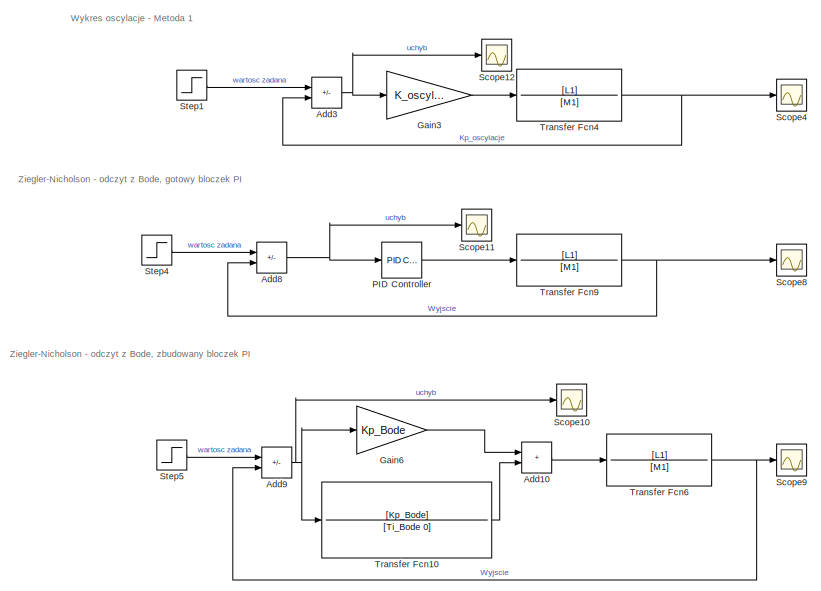
[diagram: root canvas - part 1/2, top center region]
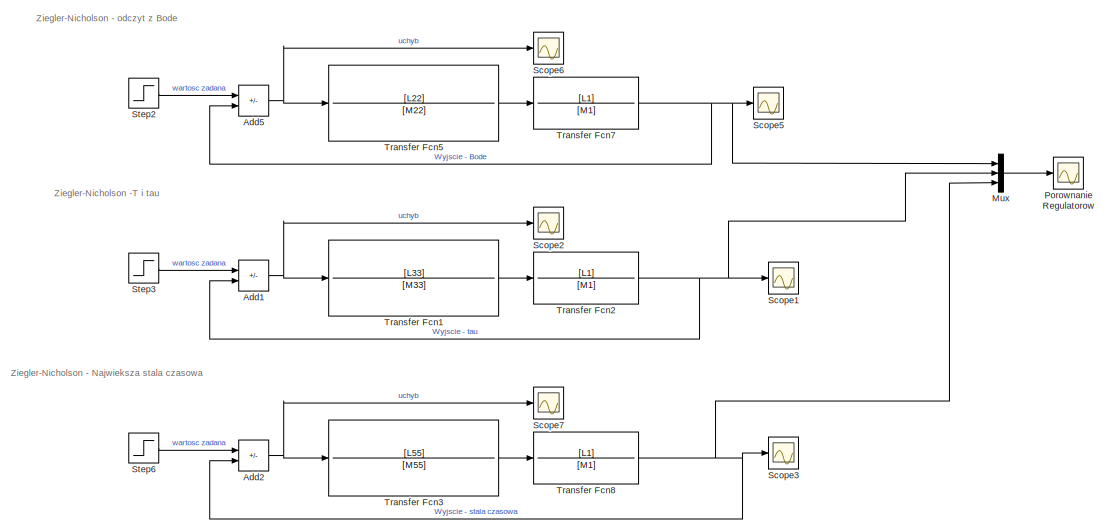
[diagram: root canvas - part 2/2, full width, bottom band]
MODEL slx_920cf55da01c
KIND model
CONFIG AbsTol = auto
CONFIG EnableMultiTasking = off
CONFIG FixedStep = auto
CONFIG MaxStep = auto
CONFIG MinStep = auto
CONFIG RelTol = 1e-3
CONFIG SampleTimeConstraint = Unconstrained
CONFIG SolverName = VariableStepAuto
CONFIG StartTime = 0.0
CONFIG StopTime = 150
BLOCK [Sum] Add1
  IconShape = rectangular
  Inputs = +-
BLOCK [Sum] Add10
  IconShape = rectangular
BLOCK [Sum] Add2
  IconShape = rectangular
  Inputs = +-
BLOCK [Sum] Add3
  IconShape = rectangular
  Inputs = +-
BLOCK [Sum] Add5
  IconShape = rectangular
  Inputs = +-
BLOCK [Sum] Add8
  IconShape = rectangular
  Inputs = +-
BLOCK [Sum] Add9
  IconShape = rectangular
  Inputs = +-
BLOCK [Gain] Gain3
  Gain = K_oscylacje
BLOCK [Gain] Gain6
  Gain = Kp_Bode
BLOCK [Mux] Mux
  DisplayOption = bar
  Inputs = 3
BLOCK [Reference] PID Controller  REF=slpidlib/PID Controller
  LibrarySourceBlock = simulink/Continuous/PID Controller
  SourceBlock = slpidlib/PID Controller
  SourceType = PID 1dof
BLOCK [Scope] Porownanie Regulatorow
  ActiveDisplayYMaximum = 2.6607619283357895
  ActiveDisplayYMinimum = -1.1491294790076525
  DataLoggingVariableName = ScopeData7
  Floating = off
  GraphicalSettings = {"Style":{"BackgroundColor":[0.12941176470588237,0.12941176470588237,0.12941176470588237],"AxesColor":[0.07058823529411765,0.07058823529411765,0.07058823529411765],"LabelsColor":[0.8509803921568627,0.8509803921568627,0.8509803921568627],"PreserveColors":false,"Visible":[true,true,true],"LineStyle":["-","-","-"],"LineWidth":[1.5,1.5,1.5],"BarWidth":[0.9,0.9,0.9],"LineColor":["auto","auto","auto"],"...<+2282ch>
  MultipleDisplayCache = [{"MaxYLimMag":1.649360617921857,"MaxYLimReal":2.6607619283357895,"MinYLimMag":0,"MinYLimReal":-1.1491294790076525,"PlotAsMagnitudePhase":false,"ShowGrid":true,"ShowLegend":true,"Title":"%<SignalLabel>","YLabel":""}]  <repeated x11 — deduplicated; at blocks: Porownanie Regulatorow, Scope1, Scope10, Scope11, Scope12, Scope2, Scope3, Scope5, Scope6, Scope7, Scope9>
  NameLocation = right
  NumInputPorts = 1
  ScopeFrameLocation = window
  ShowLegend = on
  WasSavedAsWebScope = on
  WindowPosition = [1.000000,38.000000,1920.000000,1011.000000,]
BLOCK [Scope] Scope1
  ActiveDisplayYMaximum = 2.6607619283357895
  ActiveDisplayYMinimum = -1.1491294790076525
  Floating = off
  GraphicalSettings = {"Style":{"BackgroundColor":[0.12941176470588237,0.12941176470588237,0.12941176470588237],"AxesColor":[0.07058823529411765,0.07058823529411765,0.07058823529411765],"LabelsColor":[0.8509803921568627,0.8509803921568627,0.8509803921568627],"PreserveColors":false,"Visible":[true],"LineStyle":["-"],"LineWidth":[1.5],"BarWidth":[0.9],"LineColor":["auto"],"LineFaceAlpha":[1],"LineEdgeAlpha":[1],"Marker":...<+2294ch>
  NumInputPorts = 1
  ScopeFrameLocation = window
  ShowLegend = on
  WasSavedAsWebScope = on
  WindowPosition = [1.000000,38.000000,1920.000000,1011.000000,]
BLOCK [Scope] Scope10
  ActiveDisplayYMaximum = 2.6607619283357895
  ActiveDisplayYMinimum = -1.1491294790076525
  DataLoggingVariableName = ScopeData10
  Floating = off
  GraphicalSettings = {"Style":{"BackgroundColor":[0.12941176470588237,0.12941176470588237,0.12941176470588237],"AxesColor":[0.07058823529411765,0.07058823529411765,0.07058823529411765],"LabelsColor":[0.8509803921568627,0.8509803921568627,0.8509803921568627],"PreserveColors":false,"Visible":[true],"LineStyle":["-"],"LineWidth":[1.5],"BarWidth":[0.9],"LineColor":["auto"],"LineFaceAlpha":[1],"LineEdgeAlpha":[1],"Marker":...<+1991ch>
  NumInputPorts = 1
  ScopeFrameLocation = window
  ShowLegend = on
  WasSavedAsWebScope = on
  WindowPosition = [1.000000,38.000000,1920.000000,1011.000000,]
BLOCK [Scope] Scope11
  ActiveDisplayYMaximum = 2.6607619283357895
  ActiveDisplayYMinimum = -1.1491294790076525
  DataLoggingVariableName = ScopeData11
  Floating = off
  GraphicalSettings = {"Style":{"BackgroundColor":[0.12941176470588237,0.12941176470588237,0.12941176470588237],"AxesColor":[0.07058823529411765,0.07058823529411765,0.07058823529411765],"LabelsColor":[0.8509803921568627,0.8509803921568627,0.8509803921568627],"PreserveColors":false,"Visible":[true],"LineStyle":["-"],"LineWidth":[1.5],"BarWidth":[0.9],"LineColor":["auto"],"LineFaceAlpha":[1],"LineEdgeAlpha":[1],"Marker":...<+2278ch>
  NumInputPorts = 1
  ScopeFrameLocation = window
  ShowLegend = on
  WasSavedAsWebScope = on
  WindowPosition = [1.000000,38.000000,1920.000000,1011.000000,]
BLOCK [Scope] Scope12
  ActiveDisplayYMaximum = 2.6607619283357895
  ActiveDisplayYMinimum = -1.1491294790076525
  DataLoggingVariableName = ScopeData12
  Floating = off
  GraphicalSettings = {"Style":{"BackgroundColor":[0.12941176470588237,0.12941176470588237,0.12941176470588237],"AxesColor":[0.07058823529411765,0.07058823529411765,0.07058823529411765],"LabelsColor":[0.8509803921568627,0.8509803921568627,0.8509803921568627],"PreserveColors":false,"Visible":[true],"LineStyle":["-"],"LineWidth":[1.5],"BarWidth":[0.9],"LineColor":["auto"],"LineFaceAlpha":[1],"LineEdgeAlpha":[1],"Marker":...<+2309ch>
  NumInputPorts = 1
  ScopeFrameLocation = window
  ShowLegend = on
  WasSavedAsWebScope = on
  WindowPosition = [1.000000,38.000000,1920.000000,1011.000000,]
BLOCK [Scope] Scope2
  ActiveDisplayYMaximum = 2.6607619283357895
  ActiveDisplayYMinimum = -1.1491294790076525
  DataLoggingVariableName = ScopeData1
  Floating = off
  GraphicalSettings = {"Style":{"BackgroundColor":[0.12941176470588237,0.12941176470588237,0.12941176470588237],"AxesColor":[0.07058823529411765,0.07058823529411765,0.07058823529411765],"LabelsColor":[0.8509803921568627,0.8509803921568627,0.8509803921568627],"PreserveColors":false,"Visible":[true],"LineStyle":["-"],"LineWidth":[1.5],"BarWidth":[0.9],"LineColor":["auto"],"LineFaceAlpha":[1],"LineEdgeAlpha":[1],"Marker":...<+2278ch>
  NumInputPorts = 1
  ScopeFrameLocation = window
  ShowLegend = on
  WasSavedAsWebScope = on
  WindowPosition = [1.000000,38.000000,1920.000000,1011.000000,]
BLOCK [Scope] Scope3
  ActiveDisplayYMaximum = 2.6607619283357895
  ActiveDisplayYMinimum = -1.1491294790076525
  DataLoggingVariableName = ScopeData2
  Floating = off
  GraphicalSettings = {"Style":{"BackgroundColor":[0.12941176470588237,0.12941176470588237,0.12941176470588237],"AxesColor":[0.07058823529411765,0.07058823529411765,0.07058823529411765],"LabelsColor":[0.8509803921568627,0.8509803921568627,0.8509803921568627],"PreserveColors":false,"Visible":[true],"LineStyle":["-"],"LineWidth":[1.5],"BarWidth":[0.9],"LineColor":["auto"],"LineFaceAlpha":[1],"LineEdgeAlpha":[1],"Marker":...<+2314ch>
  NumInputPorts = 1
  ScopeFrameLocation = window
  ShowLegend = on
  WasSavedAsWebScope = on
  WindowPosition = [1.000000,38.000000,1920.000000,1011.000000,]
BLOCK [Scope] Scope4
  ActiveDisplayYMaximum = 2.9907675699860246
  ActiveDisplayYMinimum = -1.3587201859755582
  DataLoggingVariableName = ScopeData4
  Floating = off
  GraphicalSettings = {"Style":{"BackgroundColor":[0.12941176470588237,0.12941176470588237,0.12941176470588237],"AxesColor":[0.07058823529411765,0.07058823529411765,0.07058823529411765],"LabelsColor":[0.8509803921568627,0.8509803921568627,0.8509803921568627],"PreserveColors":false,"Visible":[true],"LineStyle":["-"],"LineWidth":[1.5],"BarWidth":[0.9],"LineColor":["auto"],"LineFaceAlpha":[1],"LineEdgeAlpha":[1],"Marker":...<+2294ch>
  MultipleDisplayCache = [{"MaxYLimMag":2.2312634777011815,"MaxYLimReal":2.9907675699860246,"MinYLimMag":0,"MinYLimReal":-1.3587201859755582,"PlotAsMagnitudePhase":false,"ShowGrid":true,"ShowLegend":true,"Title":"%<SignalLabel>","YLabel":""}]
  NumInputPorts = 1
  ScopeFrameLocation = window
  ShowLegend = on
  WasSavedAsWebScope = on
  WindowPosition = [95.000000,120.000000,1680.000000,900.000000,]
BLOCK [Scope] Scope5
  ActiveDisplayYMaximum = 2.6607619283357895
  ActiveDisplayYMinimum = -1.1491294790076525
  DataLoggingVariableName = ScopeData5
  Floating = off
  GraphicalSettings = {"Style":{"BackgroundColor":[0.12941176470588237,0.12941176470588237,0.12941176470588237],"AxesColor":[0.07058823529411765,0.07058823529411765,0.07058823529411765],"LabelsColor":[0.8509803921568627,0.8509803921568627,0.8509803921568627],"PreserveColors":false,"Visible":[true],"LineStyle":["-"],"LineWidth":[1.5],"BarWidth":[0.9],"LineColor":["auto"],"LineFaceAlpha":[1],"LineEdgeAlpha":[1],"Marker":...<+2296ch>
  NumInputPorts = 1
  ScopeFrameLocation = window
  ShowLegend = on
  WasSavedAsWebScope = on
  WindowPosition = [1.000000,38.000000,1920.000000,1011.000000,]
BLOCK [Scope] Scope6
  ActiveDisplayYMaximum = 2.6607619283357895
  ActiveDisplayYMinimum = -1.1491294790076525
  DataLoggingVariableName = ScopeData6
  Floating = off
  GraphicalSettings = {"Style":{"BackgroundColor":[0.12941176470588237,0.12941176470588237,0.12941176470588237],"AxesColor":[0.07058823529411765,0.07058823529411765,0.07058823529411765],"LabelsColor":[0.8509803921568627,0.8509803921568627,0.8509803921568627],"PreserveColors":false,"Visible":[true],"LineStyle":["-"],"LineWidth":[1.5],"BarWidth":[0.9],"LineColor":["auto"],"LineFaceAlpha":[1],"LineEdgeAlpha":[1],"Marker":...<+2279ch>
  NumInputPorts = 1
  ScopeFrameLocation = window
  ShowLegend = on
  WasSavedAsWebScope = on
  WindowPosition = [1.000000,38.000000,1920.000000,1011.000000,]
BLOCK [Scope] Scope7
  ActiveDisplayYMaximum = 2.6607619283357895
  ActiveDisplayYMinimum = -1.1491294790076525
  DataLoggingVariableName = ScopeData3
  Floating = off
  GraphicalSettings = {"Style":{"BackgroundColor":[0.12941176470588237,0.12941176470588237,0.12941176470588237],"AxesColor":[0.07058823529411765,0.07058823529411765,0.07058823529411765],"LabelsColor":[0.8509803921568627,0.8509803921568627,0.8509803921568627],"PreserveColors":false,"Visible":[true],"LineStyle":["-"],"LineWidth":[1.5],"BarWidth":[0.9],"LineColor":["auto"],"LineFaceAlpha":[1],"LineEdgeAlpha":[1],"Marker":...<+2279ch>
  NumInputPorts = 1
  ScopeFrameLocation = window
  ShowLegend = on
  WasSavedAsWebScope = on
  WindowPosition = [1.000000,38.000000,1920.000000,1011.000000,]
BLOCK [Scope] Scope8
  ActiveDisplayYMaximum = 1.774637812883515
  ActiveDisplayYMinimum = -0.19718197920927938
  DataLoggingVariableName = ScopeData8
  Floating = off
  GraphicalSettings = {"Style":{"BackgroundColor":[0.12941176470588237,0.12941176470588237,0.12941176470588237],"AxesColor":[0.07058823529411765,0.07058823529411765,0.07058823529411765],"LabelsColor":[0.8509803921568627,0.8509803921568627,0.8509803921568627],"PreserveColors":false,"Visible":[true],"LineStyle":["-"],"LineWidth":[1.5],"BarWidth":[0.9],"LineColor":["auto"],"LineFaceAlpha":[1],"LineEdgeAlpha":[1],"Marker":...<+2282ch>
  MultipleDisplayCache = [{"MaxYLimMag":1.774637812883515,"MaxYLimReal":1.774637812883515,"MinYLimMag":0,"MinYLimReal":-0.19718197920927938,"PlotAsMagnitudePhase":false,"ShowGrid":true,"ShowLegend":true,"Title":"%<SignalLabel>","YLabel":""}]
  NumInputPorts = 1
  ScopeFrameLocation = window
  ShowLegend = on
  WasSavedAsWebScope = on
  WindowPosition = [1.000000,38.000000,1920.000000,1011.000000,]
BLOCK [Scope] Scope9
  ActiveDisplayYMaximum = 2.6607619283357895
  ActiveDisplayYMinimum = -1.1491294790076525
  DataLoggingVariableName = ScopeData9
  Floating = off
  GraphicalSettings = {"Style":{"BackgroundColor":[0.12941176470588237,0.12941176470588237,0.12941176470588237],"AxesColor":[0.07058823529411765,0.07058823529411765,0.07058823529411765],"LabelsColor":[0.8509803921568627,0.8509803921568627,0.8509803921568627],"PreserveColors":false,"Visible":[true],"LineStyle":["-"],"LineWidth":[1.5],"BarWidth":[0.9],"LineColor":["auto"],"LineFaceAlpha":[1],"LineEdgeAlpha":[1],"Marker":...<+2282ch>
  NumInputPorts = 1
  ScopeFrameLocation = window
  ShowLegend = on
  WasSavedAsWebScope = on
  WindowPosition = [1.000000,38.000000,1920.000000,1011.000000,]
BLOCK [Step] Step1
  SampleTime = Sample_time
  Time = 0
BLOCK [Step] Step2
  SampleTime = Sample_time
  Time = 0
BLOCK [Step] Step3
  SampleTime = Sample_time
  Time = 0
BLOCK [Step] Step4
  SampleTime = Sample_time
  Time = 0
BLOCK [Step] Step5
  SampleTime = Sample_time
  Time = 0
BLOCK [Step] Step6
  SampleTime = Sample_time
  Time = 0
BLOCK [TransferFcn] Transfer Fcn1
  Denominator = [M33]
  Numerator = [L33]
BLOCK [TransferFcn] Transfer Fcn10
  Denominator = [Ti_Bode 0]
  Numerator = [Kp_Bode]
BLOCK [TransferFcn] Transfer Fcn2
  Denominator = [M1]
  Numerator = [L1]
BLOCK [TransferFcn] Transfer Fcn3
  Denominator = [M55]
  Numerator = [L55]
BLOCK [TransferFcn] Transfer Fcn4
  Denominator = [M1]
  Numerator = [L1]
BLOCK [TransferFcn] Transfer Fcn5
  Denominator = [M22]
  Numerator = [L22]
BLOCK [TransferFcn] Transfer Fcn6
  Denominator = [M1]
  Numerator = [L1]
BLOCK [TransferFcn] Transfer Fcn7
  Denominator = [M1]
  Numerator = [L1]
BLOCK [TransferFcn] Transfer Fcn8
  Denominator = [M1]
  Numerator = [L1]
BLOCK [TransferFcn] Transfer Fcn9
  Denominator = [M1]
  Numerator = [L1]
ANNOTATION (root): Wykres oscylacje - Metoda 1
ANNOTATION (root): Ziegler-Nicholson - Najwieksza stala czasowa
ANNOTATION (root): Ziegler-Nicholson - odczyt z Bode
ANNOTATION (root): Ziegler-Nicholson - odczyt z Bode, gotowy bloczek PI
ANNOTATION (root): Ziegler-Nicholson - odczyt z Bode, zbudowany bloczek PI
ANNOTATION (root): Ziegler-Nicholson -T i tau
LINE Add10:1 -> Transfer Fcn6:1
NET Add1:1 -> Scope2:1, Transfer Fcn1:1
NET Add2:1 -> Scope7:1, Transfer Fcn3:1
NET Add3:1 -> Gain3:1, Scope12:1
NET Add5:1 -> Scope6:1, Transfer Fcn5:1
NET Add8:1 -> PID Controller:1, Scope11:1
NET Add9:1 -> Gain6:1, Scope10:1, Transfer Fcn10:1
LINE Gain3:1 -> Transfer Fcn4:1
LINE Gain6:1 -> Add10:1
LINE Mux:1 -> Porownanie Regulatorow:1
LINE PID Controller:1 -> Transfer Fcn9:1
LINE Step1:1 -> Add3:1
LINE Step2:1 -> Add5:1
LINE Step3:1 -> Add1:1
LINE Step4:1 -> Add8:1
LINE Step5:1 -> Add9:1
LINE Step6:1 -> Add2:1
LINE Transfer Fcn10:1 -> Add10:2
LINE Transfer Fcn1:1 -> Transfer Fcn2:1
NET Transfer Fcn2:1 -> Add1:2, Mux:2, Scope1:1
LINE Transfer Fcn3:1 -> Transfer Fcn8:1
NET Transfer Fcn4:1 -> Add3:2, Scope4:1
LINE Transfer Fcn5:1 -> Transfer Fcn7:1
NET Transfer Fcn6:1 -> Add9:2, Scope9:1
NET Transfer Fcn7:1 -> Add5:2, Mux:1, Scope5:1
NET Transfer Fcn8:1 -> Add2:2, Mux:3, Scope3:1
NET Transfer Fcn9:1 -> Add8:2, Scope8:1
note: NET lines group one-source signal fan-out (src -> all destinations, sorted); 1:1 wires keep LINE
